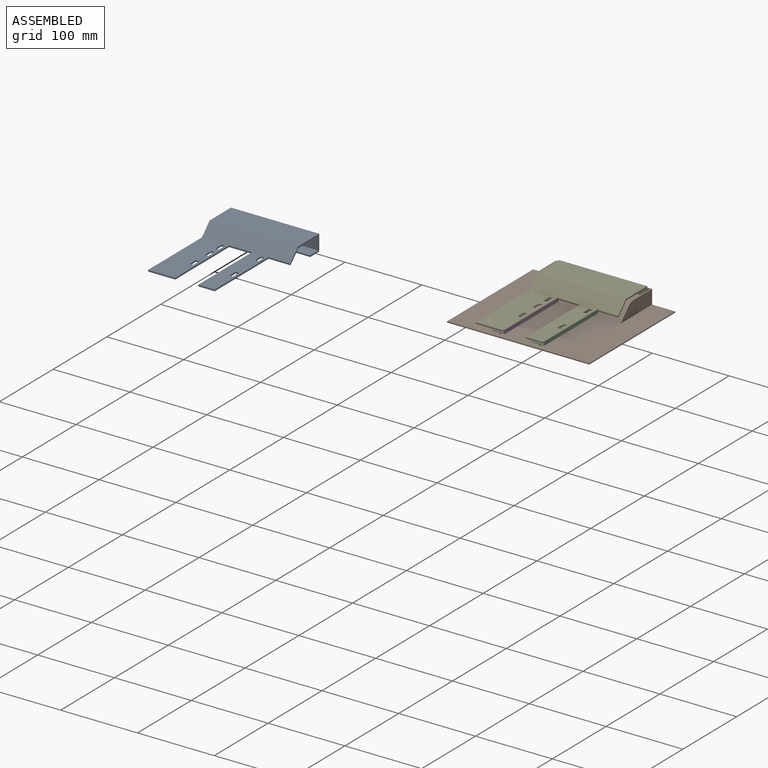
[diagram: assembled view]
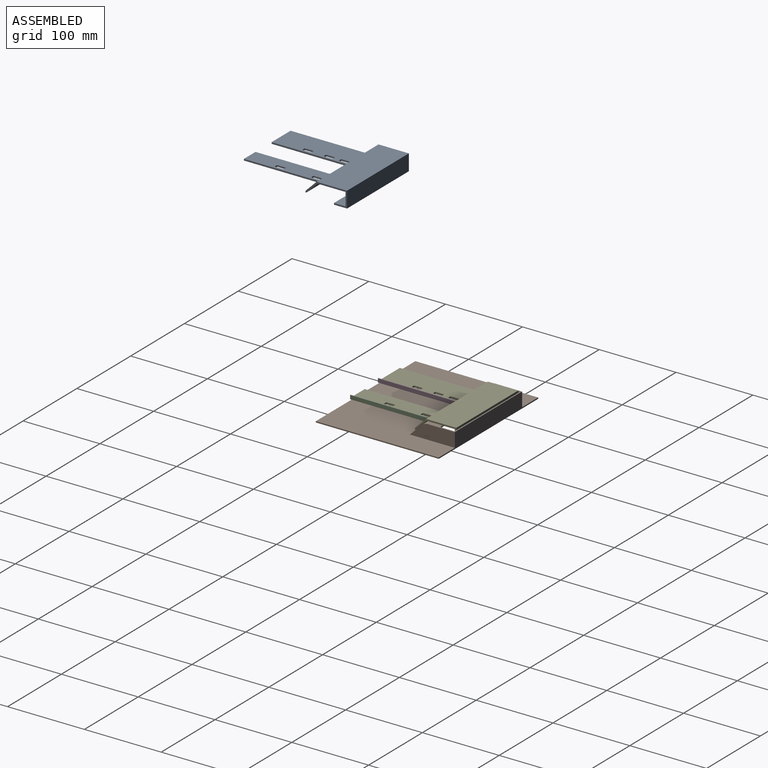
[diagram: assembled view, second angle]
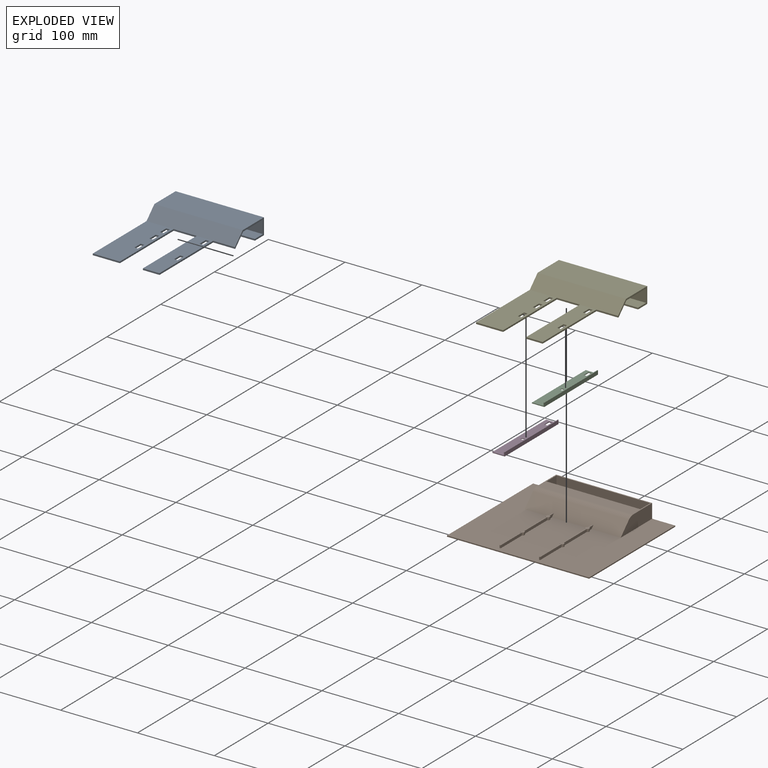
[diagram: exploded view]
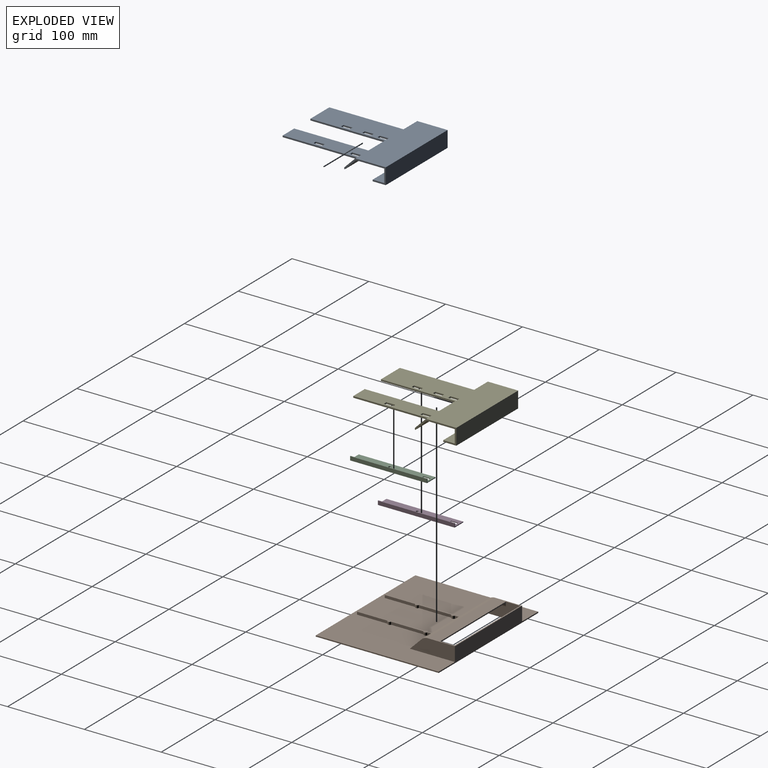
[diagram: exploded view, second angle]
ASSEMBLY  parts=5 mates=3
PART A: 41 faces, bbox 115x154x21 mm
  f0: plane 35.25x2mm, normal (0,-1,0), area 70.5mm2, adj f2,f4,f6,f38
  f1: plane 21.5x2mm, normal (0,-1,0), area 43mm2, adj f3,f4,f36,f39
  f2: plane 100x35.25mm, normal (0,0,1), area 3369.7mm2, adj f0,f6,f9,f16,f17,f18,f19,f20
  f3: plane 100x21.5mm, normal (0,0,1), area 2046.5mm2, adj f1,f9,f24,f25,f26,f27,f28,f29
  f4: plane 115x100.83mm, normal (0,0,-1), area 5511.5mm2, adj f0,f1,f6,f7,f11,f16,f17,f18
  f5: plane 115x2mm, normal (0,-1,0), area 230mm2, adj f6,f7,f13,f15
  f6: plane 154x21mm, normal (-1,0,0), area 388mm2, adj f0,f2,f4,f5,f8,f9,f10,f11
  f7: plane 54x21mm, normal (1,0,0), area 188mm2, adj f4,f5,f8,f9,f10,f11,f12,f13
  f8: plane 115x39.5mm, normal (0,0,1), area 4542.5mm2, adj f6,f7,f9,f12
  f9: plane 115x14.5mm, normal (0,-0.71,0.71), area 2358.2mm2, adj f2,f3,f6,f7,f8,f37,f40
  f10: plane 115x36.67mm, normal (0,0,-1), area 4217.2mm2, adj f6,f7,f11,f14
  f11: plane 115x14.5mm, normal (0,0.71,-0.71), area 2358.2mm2, adj f4,f6,f7,f10
  f12: plane 115x21mm, normal (0,1,0), area 2415mm2, adj f6,f7,f8,f13
  f13: plane 115x17mm, normal (0,0,-1), area 1955mm2, adj f5,f6,f7,f12
  f14: plane 115x17mm, normal (0,-1,0), area 1955mm2, adj f6,f7,f10,f15
  f15: plane 115x15mm, normal (0,0,1), area 1725mm2, adj f5,f6,f7,f14
  f16: plane 4.5x2mm, normal (0,-1,0), area 9mm2, adj f2,f4,f17,f19
  f17: plane 11.5x2mm, normal (1,0,0), area 23mm2, adj f2,f4,f16,f18
  f18: plane 4.5x2mm, normal (0,1,0), area 9mm2, adj f2,f4,f17,f19
  f19: plane 11.5x2mm, normal (-1,0,0), area 23mm2, adj f2,f4,f16,f18
  f20: plane 4.5x2mm, normal (0,-1,0), area 9mm2, adj f2,f4,f21,f23
  f21: plane 11.5x2mm, normal (1,0,0), area 23mm2, adj f2,f4,f20,f22
  f22: plane 4.5x2mm, normal (0,1,0), area 9mm2, adj f2,f4,f21,f23
  f23: plane 11.5x2mm, normal (-1,0,0), area 23mm2, adj f2,f4,f20,f22
  f24: plane 4.5x2mm, normal (0,-1,0), area 9mm2, adj f3,f4,f25,f27
  f25: plane 11.5x2mm, normal (1,0,0), area 23mm2, adj f3,f4,f24,f26
  f26: plane 4.5x2mm, normal (0,1,0), area 9mm2, adj f3,f4,f25,f27
  f27: plane 11.5x2mm, normal (-1,0,0), area 23mm2, adj f3,f4,f24,f26
  f28: plane 4.5x2mm, normal (0,-1,0), area 9mm2, adj f3,f4,f29,f31
  f29: plane 11.5x2mm, normal (1,0,0), area 23mm2, adj f3,f4,f28,f30
  f30: plane 4.5x2mm, normal (0,1,0), area 9mm2, adj f3,f4,f29,f31
  f31: plane 11.5x2mm, normal (-1,0,0), area 23mm2, adj f3,f4,f28,f30
  f32: plane 4.5x2mm, normal (0,-1,0), area 9mm2, adj f2,f4,f33,f35
  f33: plane 11.5x2mm, normal (1,0,0), area 23mm2, adj f2,f4,f32,f34
  f34: plane 4.5x2mm, normal (0,1,0), area 9mm2, adj f2,f4,f33,f35
  f35: plane 11.5x2mm, normal (-1,0,0), area 23mm2, adj f2,f4,f32,f34
  f36: plane 100x2mm, normal (1,0,0), area 200mm2, adj f1,f3,f4,f37
  f37: plane 28.25x2mm, normal (0,-1,0), area 56.5mm2, adj f4,f7,f9,f36
  f38: plane 100x2mm, normal (1,0,0), area 200mm2, adj f0,f2,f4,f40
  f39: plane 100x2mm, normal (-1,0,0), area 200mm2, adj f1,f3,f4,f40
  f40: plane 30x2mm, normal (0,-1,0), area 60mm2, adj f4,f9,f38,f39
PART B: 53 faces, bbox 185x160x25.8 mm
  f0: plane 39.57x3.5mm, normal (1,0,0), area 138.5mm2, adj f12,f41,f42,f51
  f1: plane 42.23x3.5mm, normal (1,0,0), area 147.8mm2, adj f12,f41,f46,f51
  f2: plane 39.57x3.5mm, normal (-1,0,0), area 138.5mm2, adj f12,f41,f42,f52
  f3: plane 42.23x3.5mm, normal (-1,0,0), area 147.8mm2, adj f12,f41,f45,f52
  f4: plane 39.57x3.5mm, normal (1,0,0), area 138.5mm2, adj f12,f43,f44,f49
  f5: plane 42.23x3.5mm, normal (1,0,0), area 147.8mm2, adj f12,f43,f48,f49
  f6: plane 39.57x3.5mm, normal (-1,0,0), area 138.5mm2, adj f12,f43,f44,f50
  f7: plane 42.23x3.5mm, normal (-1,0,0), area 147.8mm2, adj f12,f43,f47,f50
  f8: plane 7.62x3.5mm, normal (1,0,0), area 20.5mm2, adj f12,f14,f43,f48
  f9: plane 7.62x3.5mm, normal (-1,0,0), area 20.5mm2, adj f12,f14,f43,f47
  f10: plane 7.62x3.5mm, normal (1,0,0), area 20.5mm2, adj f12,f14,f41,f46
  f11: plane 7.62x3.5mm, normal (-1,0,0), area 20.5mm2, adj f12,f14,f41,f45
  f12: plane 185x160mm, normal (0,0,1), area 21952.2mm2, adj f0,f1,f2,f3,f4,f5,f6,f7
  f13: cylinder r=5mm len=112mm, axis (-1,0,0), area 539.5mm2, adj f21,f27,f29,f33
  f14: plane 125x15.11mm, normal (0,-0.71,0.71), area 2656.9mm2, adj f8,f9,f10,f11,f12,f18,f19,f37
  f15: plane 122x6.5mm, normal (0,1,0), area 193.7mm2, adj f20,f23,f24,f26,f32,f36
  f16: plane 122x18.5mm, normal (0,0,1), area 2257mm2, adj f22,f23,f24,f25
  f17: plane 185x20mm, normal (0,1,0), area 2590mm2, adj f12,f18,f19,f20,f21,f39,f40
  f18: plane 58.5x18.5mm, normal (-1,0,0), area 908.2mm2, adj f12,f14,f17,f20,f37
  f19: plane 58.5x18.5mm, normal (1,0,0), area 908.2mm2, adj f12,f14,f17,f20,f37
  f20: plane 125x35.21mm, normal (0,0,1), area 2144.4mm2, adj f15,f17,f18,f19,f22,f23,f24,f37
  f21: plane 185.01x160.01mm, normal (0,0,-1), area 25210.5mm2, adj f13,f17,f23,f24,f25,f29,f30,f33
  f22: plane 122x18.5mm, normal (0,-1,0), area 2257mm2, adj f16,f20,f23,f24
  f23: plane 46.01x20mm, normal (1,0,0), area 650.3mm2, adj f15,f16,f20,f21,f22,f25,f34,f36
  f24: plane 46.01x20mm, normal (-1,0,0), area 650.3mm2, adj f15,f16,f20,f21,f22,f25,f30,f32
  f25: plane 122x1.5mm, normal (0,-1,0), area 183mm2, adj f16,f21,f23,f24
  f26: plane 112x18.12mm, normal (0,0,-1), area 2029.9mm2, adj f15,f28,f32,f36
  f27: plane 112x14.21mm, normal (0,0.82,-0.57), area 1937.9mm2, adj f13,f28,f30,f34
  f28: cylinder r=5mm len=112mm, axis (-1,0,0), area 539.5mm2, adj f26,f27,f31,f35
  f29: torus R=10mm, axis (1,0,0), area 15mm2, adj f13,f21,f30
  f30: cylinder r=5mm len=17.06mm, axis (0,0.57,0.82), area 135.4mm2, adj f21,f24,f27,f29,f31
  f31: sphere r=5mm, area 24.1mm2, adj f28,f30,f32
  f32: cylinder r=5mm len=18.12mm, axis (0,1,0), area 142.3mm2, adj f15,f24,f26,f31
  f33: torus R=10mm, axis (1,0,0), area 15mm2, adj f13,f21,f34
  f34: cylinder r=5mm len=17.06mm, axis (0,0.57,0.82), area 135.4mm2, adj f21,f23,f27,f33,f35
  f35: sphere r=5mm, area 24.1mm2, adj f28,f34,f36
  f36: cylinder r=5mm len=18.12mm, axis (0,-1,0), area 142.3mm2, adj f15,f23,f26,f35
  f37: cylinder r=11.56mm len=125mm, axis (1,0,0), area 1135mm2, adj f14,f18,f19,f20
  f38: plane 185x1.5mm, normal (0,-1,0), area 277.5mm2, adj f12,f21,f39,f40
  f39: plane 160x1.5mm, normal (1,0,0), area 240mm2, adj f12,f17,f21,f38
  f40: plane 160x1.5mm, normal (-1,0,0), area 240mm2, adj f12,f17,f21,f38
  f41: plane 98.95x5mm, normal (0,0,1), area 172.9mm2, adj f0,f1,f2,f3,f10,f11,f14,f42
  f42: plane 3.5x1.5mm, normal (0,-1,0), area 5.3mm2, adj f0,f2,f12,f41
  f43: plane 98.95x5mm, normal (0,0,1), area 172.9mm2, adj f4,f5,f6,f7,f8,f9,f14,f44
  f44: plane 3.5x1.5mm, normal (0,-1,0), area 5.2mm2, adj f4,f6,f12,f43
  f45: cylinder r=2.5mm len=4.77mm, axis (0,0,-1), area 22.2mm2, adj f3,f11,f12,f41
  f46: cylinder r=2.5mm len=4.77mm, axis (0,0,-1), area 22.2mm2, adj f1,f10,f12,f41
  f47: cylinder r=2.5mm len=4.77mm, axis (0,0,-1), area 22.2mm2, adj f7,f9,f12,f43
  f48: cylinder r=2.5mm len=4.77mm, axis (0,0,-1), area 22.2mm2, adj f5,f8,f12,f43
  f49: cylinder r=2.5mm len=4.77mm, axis (0,0,-1), area 22.2mm2, adj f4,f5,f12,f43
  f50: cylinder r=2.5mm len=4.77mm, axis (0,0,-1), area 22.2mm2, adj f6,f7,f12,f43
  f51: cylinder r=2.5mm len=4.77mm, axis (0,0,-1), area 22.2mm2, adj f0,f1,f12,f41
  f52: cylinder r=2.5mm len=4.77mm, axis (0,0,-1), area 22.2mm2, adj f2,f3,f12,f41
PART C: 13 faces, bbox 16x100x5 mm
  f0: plane 16x5mm, normal (0,1,0), area 20mm2, adj f1,f3,f4,f5,f6,f7
  f1: plane 100x1mm, normal (-1,0,0), area 100mm2, adj f0,f2,f3,f4
  f2: plane 16x5mm, normal (0,-1,0), area 20mm2, adj f1,f3,f4,f5,f6,f7
  f3: plane 100x15mm, normal (0,0,1), area 1451.4mm2, adj f0,f1,f2,f5,f8,f9,f10,f11
  f4: plane 100x16mm, normal (0,0,-1), area 1551.4mm2, adj f0,f1,f2,f6,f8,f9,f10,f11
  f5: plane 100x4mm, normal (-1,0,0), area 400mm2, adj f0,f2,f3,f7
  f6: plane 100x5mm, normal (1,0,0), area 500mm2, adj f0,f2,f4,f7
  f7: plane 100x1mm, normal (0,0,1), area 100mm2, adj f0,f2,f5,f6
  f8: plane 4x1mm, normal (0,-1,0), area 4mm2, adj f3,f4,f9,f11
  f9: plane 9x1mm, normal (1,0,0), area 9mm2, adj f3,f4,f8,f10
  f10: plane 4x1mm, normal (0,1,0), area 4mm2, adj f3,f4,f9,f11
  f11: plane 9x1mm, normal (-1,0,0), area 9mm2, adj f3,f4,f8,f10
  f12: cylinder r=2mm len=4mm, axis (0,0,-1), area 12.6mm2, adj f3,f4
PART D: same geometry as C
PART E: same geometry as A
PLACE A t=(-249.27,-347,132.78)mm
PLACE B t=(-17.48,-21.04,10.78)mm
PLACE C t=(48.16,-68.24,15.78)mm
PLACE D t=(-3.34,-68.24,15.78)mm
PLACE E t=(-29.65,-50.92,16.78)mm
MATE fastened C.f12 <-> B.f49  axis (0,0,-1) through (13.84,-72.93,15.78)mm
MATE fastened E.f4 <-> D.f12  axis (0,0,-1) through (-37.66,-72.93,16.78)mm
MATE fastened D.f12 <-> B.f51  axis (0,0,-1) through (-37.66,-72.93,15.78)mm
